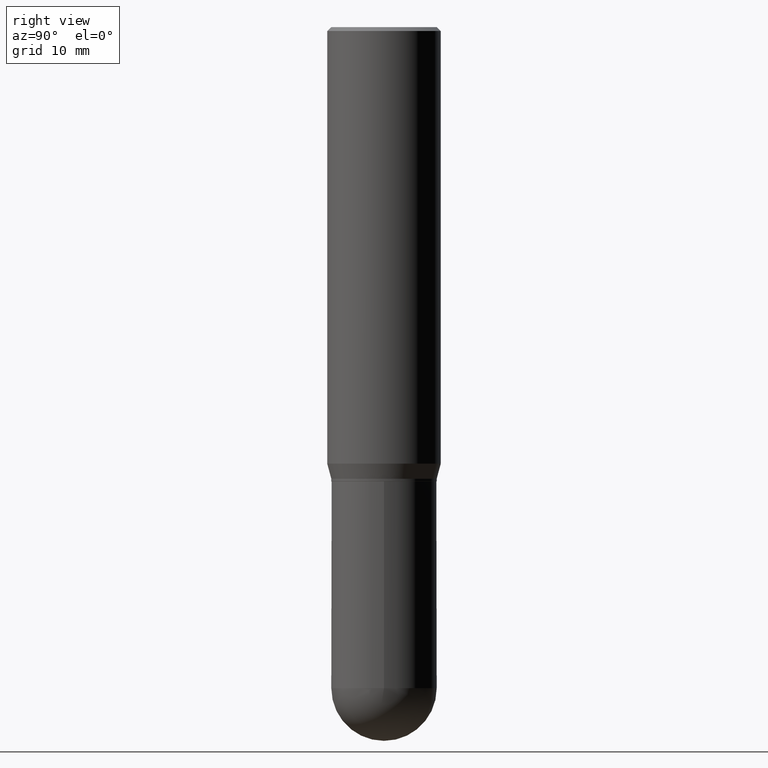
[diagram: clean part render]
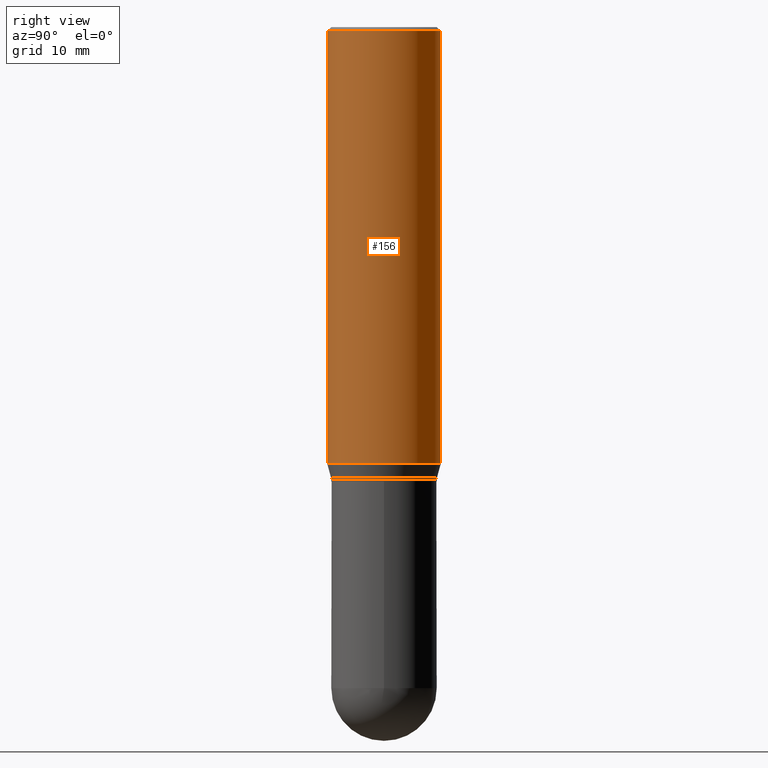
[diagram: same view with one face highlighted and labeled with its STEP entity id]
A machine part, right view. The second image highlights one B-rep face of the part: STEP entity #156.
In plain terms, the highlighted cylindrical surface (partial cylindrical patch) has radius 5.5562 mm, axis along (-0, 0, 1).
Its self-contained STEP definition (entity closure, byte-faithful):
#29 = FACE_OUTER_BOUND ( 'NONE', #61, .T. ) ;
#38 = VECTOR ( 'NONE', #476, 39.37007874015748143 ) ;
#39 = CIRCLE ( 'NONE', #53, 0.2187500000000000000 ) ;
#53 = AXIS2_PLACEMENT_3D ( 'NONE', #231, #128, #448 ) ;
#61 = EDGE_LOOP ( 'NONE', ( #334, #498, #157, #85 ) ) ;
#85 = ORIENTED_EDGE ( 'NONE', *, *, #235, .F. ) ;
#110 = LINE ( 'NONE', #265, #38 ) ;
#113 = DIRECTION ( 'NONE',  ( -2.445434585093504913E-29, 3.491530345394105536E-15, 1.000000000000000000 ) ) ;
#128 = DIRECTION ( 'NONE',  ( -2.445434585093504913E-29, 3.491530345394105536E-15, 1.000000000000000000 ) ) ;
#148 = CARTESIAN_POINT ( 'NONE',  ( 4.112226670313570876E-29, -5.871334401688686033E-15, -1.681593404861546848 ) ) ;
#156 = ADVANCED_FACE ( 'NONE', ( #29 ), #183, .T. ) ;
#157 = ORIENTED_EDGE ( 'NONE', *, *, #491, .F. ) ;
#161 = CARTESIAN_POINT ( 'NONE',  ( -1.527523085743870054E-15, -0.2187500000000000555, -0.01499999999999946862 ) ) ;
#183 = CYLINDRICAL_SURFACE ( 'NONE', #468, 0.2187500000000000000 ) ;
#231 = CARTESIAN_POINT ( 'NONE',  ( 3.668151877640314350E-31, -5.237295518091239778E-17, -0.01500000000000023190 ) ) ;
#235 = EDGE_CURVE ( 'NONE', #318, #489, #499, .T. ) ;
#250 = CARTESIAN_POINT ( 'NONE',  ( -1.527523085743870449E-15, -0.2187500000000000000, 7.637722630549605613E-16 ) ) ;
#254 = DIRECTION ( 'NONE',  ( -2.445434585093504633E-29, 3.491530345394105536E-15, 1.000000000000000000 ) ) ;
#260 = CARTESIAN_POINT ( 'NONE',  ( -1.527523085743829428E-15, -0.2187500000000058287, -1.681593404861545960 ) ) ;
#265 = CARTESIAN_POINT ( 'NONE',  ( 1.554312234475218762E-15, 0.2187500000000000000, -7.637722630549605613E-16 ) ) ;
#291 = CIRCLE ( 'NONE', #446, 0.2187500000000000000 ) ;
#306 = DIRECTION ( 'NONE',  ( -6.982962677686265133E-15, -1.000000000000000000, 3.491530345394105536E-15 ) ) ;
#308 = VECTOR ( 'NONE', #254, 39.37007874015748143 ) ;
#318 = VERTEX_POINT ( 'NONE', #260 ) ;
#321 = VERTEX_POINT ( 'NONE', #427 ) ;
#334 = ORIENTED_EDGE ( 'NONE', *, *, #390, .T. ) ;
#386 = EDGE_CURVE ( 'NONE', #321, #447, #110, .T. ) ;
#390 = EDGE_CURVE ( 'NONE', #318, #321, #291, .T. ) ;
#427 = CARTESIAN_POINT ( 'NONE',  ( 1.554312234475260177E-15, 0.2187499999999941436, -1.681593404861547736 ) ) ;
#428 = CARTESIAN_POINT ( 'NONE',  ( 1.554312234475260375E-15, 0.2187499999999999167, -0.01500000000000099691 ) ) ;
#432 = DIRECTION ( 'NONE',  ( -6.982962677686265133E-15, -1.000000000000000000, 3.746534391310989557E-15 ) ) ;
#446 = AXIS2_PLACEMENT_3D ( 'NONE', #148, #113, #432 ) ;
#447 = VERTEX_POINT ( 'NONE', #428 ) ;
#448 = DIRECTION ( 'NONE',  ( -6.982962677686265133E-15, -1.000000000000000000, 3.492862791899308071E-15 ) ) ;
#462 = CARTESIAN_POINT ( 'NONE',  ( 0.000000000000000000, 0.000000000000000000, 0.000000000000000000 ) ) ;
#465 = DIRECTION ( 'NONE',  ( -2.445434585093504913E-29, 3.491530345394105536E-15, 1.000000000000000000 ) ) ;
#468 = AXIS2_PLACEMENT_3D ( 'NONE', #462, #465, #306 ) ;
#476 = DIRECTION ( 'NONE',  ( -2.445434585093504633E-29, 3.491530345394105536E-15, 1.000000000000000000 ) ) ;
#489 = VERTEX_POINT ( 'NONE', #161 ) ;
#491 = EDGE_CURVE ( 'NONE', #489, #447, #39, .T. ) ;
#498 = ORIENTED_EDGE ( 'NONE', *, *, #386, .T. ) ;
#499 = LINE ( 'NONE', #250, #308 ) ;